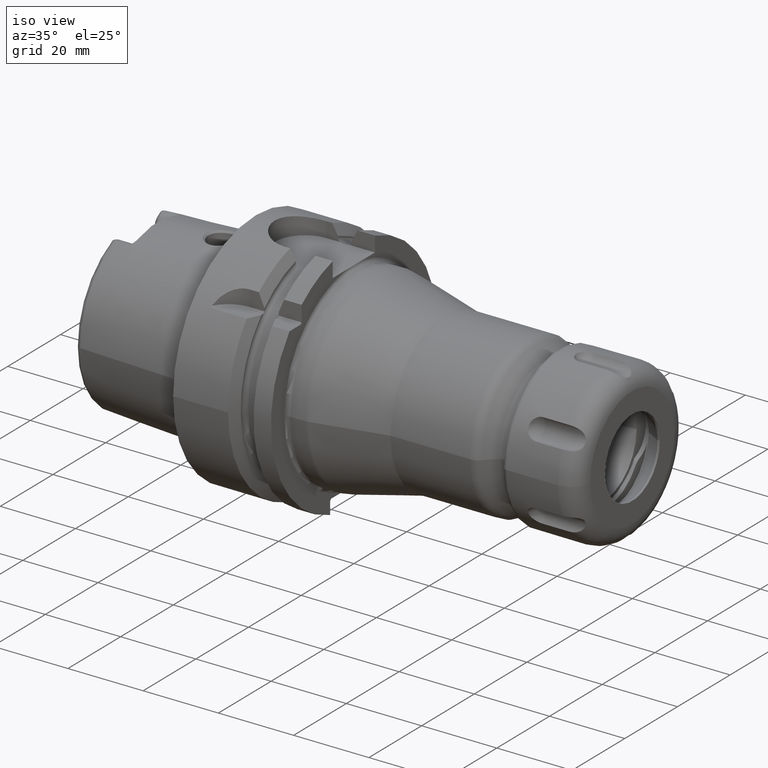
[diagram: clean part render]
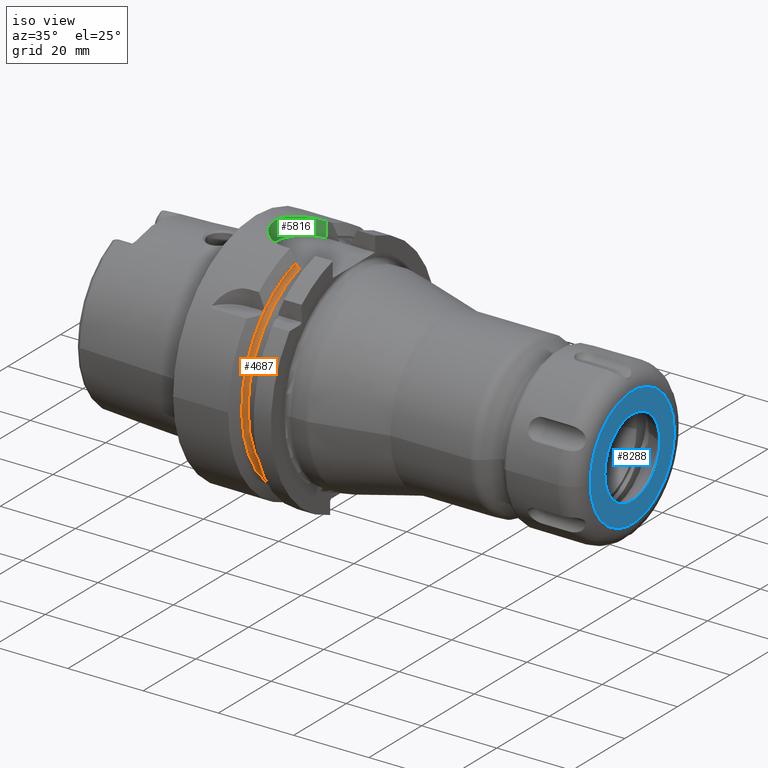
[diagram: same view with three faces highlighted in distinct colors, each labeled with its STEP entity id]
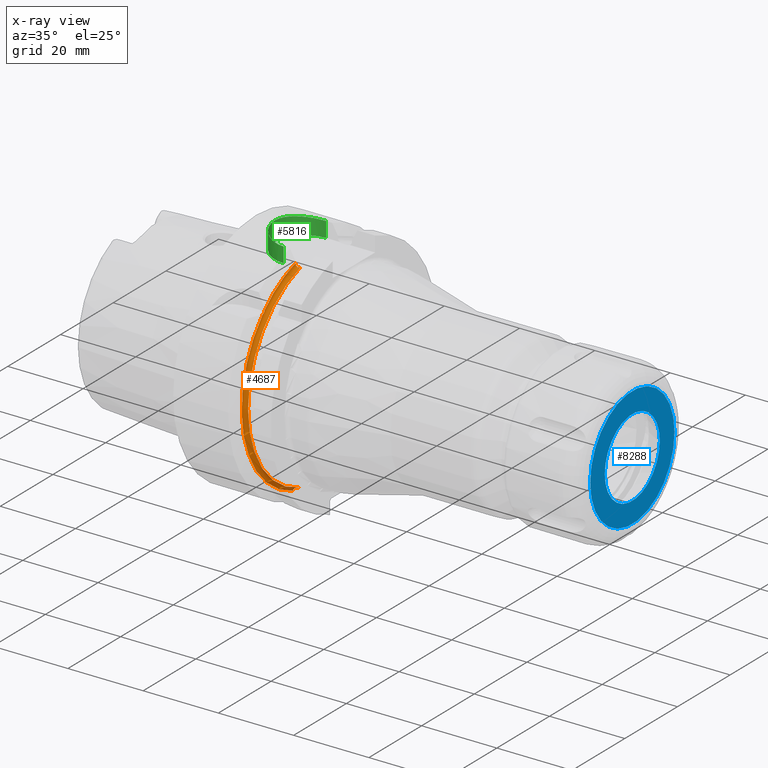
[diagram: x-ray of the same camera — body ghosted, the three highlighted faces saturated]
A machine part, iso view with three faces highlighted in distinct colors.
The next image is the same camera in x-ray (body ghosted, the three faces saturated) — at least one of them is partly hidden behind the body in this view.
Their STEP definitions:

[orange] entity #4687 — the highlighted toroidal blend (fillet) surface has major radius 28.5 mm and minor (blend) radius 1 mm.
#1206=CARTESIAN_POINT('',(1.613536526528E1,-1.985E1,2.025E1));
#1207=CARTESIAN_POINT('',(1.613550260110E1,-1.991709232524E1,2.018290767476E1));
#1208=CARTESIAN_POINT('',(1.613564025381E1,-2.005085131842E1,2.004914868158E1));
#1209=CARTESIAN_POINT('',(1.613550085848E1,-2.018375899049E1,1.991624100951E1));
#1210=CARTESIAN_POINT('',(1.613536526528E1,-2.025E1,1.985E1));
#1259=CARTESIAN_POINT('',(1.613536526528E1,-2.025E1,1.985E1));
#1260=CARTESIAN_POINT('',(1.613195006880E1,-2.028295639424E1,1.985E1));
#1261=CARTESIAN_POINT('',(1.612677449614E1,-2.034934342887E1,1.985E1));
#1262=CARTESIAN_POINT('',(1.6125E1,-2.041669538428E1,1.985E1));
#1263=CARTESIAN_POINT('',(1.6125E1,-2.045061123781E1,1.985E1));
#1265=CARTESIAN_POINT('',(1.6125E1,-1.985E1,2.045061123781E1));
#1266=CARTESIAN_POINT('',(1.6125E1,-1.985E1,2.041664671374E1));
#1267=CARTESIAN_POINT('',(1.612677957818E1,-1.985E1,2.034924596259E1));
#1268=CARTESIAN_POINT('',(1.613195508539E1,-1.985E1,2.028290798456E1));
#1269=CARTESIAN_POINT('',(1.613536526528E1,-1.985E1,2.025E1));
#1271=CARTESIAN_POINT('',(1.6125E1,0.E0,0.E0));
#1272=DIRECTION('',(-1.E0,0.E0,0.E0));
#1273=DIRECTION('',(0.E0,-6.964912280702E-1,7.175653065898E-1));
#1274=AXIS2_PLACEMENT_3D('',#1271,#1272,#1273);
#1276=CARTESIAN_POINT('',(1.670911310946E1,-8.0175E0,2.64E1));
#1277=CARTESIAN_POINT('',(1.665267827324E1,-8.0175E0,2.642697222064E1));
#1278=CARTESIAN_POINT('',(1.654577124256E1,-8.0175E0,2.649097879059E1));
#1279=CARTESIAN_POINT('',(1.639987833805E1,-8.0175E0,2.662132725065E1));
#1280=CARTESIAN_POINT('',(1.628095404298E1,-8.0175E0,2.677825869002E1));
#1281=CARTESIAN_POINT('',(1.619308374626E1,-8.0175E0,2.695355816935E1));
#1282=CARTESIAN_POINT('',(1.613735294040E1,-8.0175E0,2.714849666226E1));
#1283=CARTESIAN_POINT('',(1.6125E1,-8.0175E0,2.728116054633E1));
#1284=CARTESIAN_POINT('',(1.6125E1,-8.0175E0,2.734903460362E1));
#1286=CARTESIAN_POINT('',(1.7125E1,-7.7E0,2.64E1));
#1287=CARTESIAN_POINT('',(1.709801542874E1,-7.7E0,2.64E1));
#1288=CARTESIAN_POINT('',(1.704428225575E1,-7.707480820281E0,2.64E1));
#1289=CARTESIAN_POINT('',(1.696015728326E1,-7.744711750978E0,2.64E1));
#1290=CARTESIAN_POINT('',(1.688520085667E1,-7.800550899081E0,2.64E1));
#1291=CARTESIAN_POINT('',(1.681986238020E1,-7.866117342831E0,2.64E1));
#1292=CARTESIAN_POINT('',(1.676061128616E1,-7.939936204551E0,2.64E1));
#1293=CARTESIAN_POINT('',(1.672578491309E1,-7.991262830607E0,2.64E1));
#1294=CARTESIAN_POINT('',(1.670911310946E1,-8.0175E0,2.64E1));
#1296=CARTESIAN_POINT('',(1.644062313526E1,-8.6175E0,-2.64E1));
#1297=CARTESIAN_POINT('',(1.646078603879E1,-8.556510852770E0,-2.64E1));
#1298=CARTESIAN_POINT('',(1.650227386064E1,-8.439948273349E0,-2.64E1));
#1299=CARTESIAN_POINT('',(1.656805348335E1,-8.280864278287E0,-2.64E1));
#1300=CARTESIAN_POINT('',(1.663684500818E1,-8.138886080904E0,-2.64E1));
#1301=CARTESIAN_POINT('',(1.670898389576E1,-8.013810014671E0,-2.64E1));
#1302=CARTESIAN_POINT('',(1.678453793855E1,-7.906721865662E0,-2.64E1));
#1303=CARTESIAN_POINT('',(1.686362062870E1,-7.819127635624E0,-2.64E1));
#1304=CARTESIAN_POINT('',(1.694730615110E1,-7.751879650101E0,-2.64E1));
#1305=CARTESIAN_POINT('',(1.703817130297E1,-7.708637437381E0,-2.64E1));
#1306=CARTESIAN_POINT('',(1.709608612766E1,-7.7E0,-2.64E1));
#1307=CARTESIAN_POINT('',(1.7125E1,-7.7E0,-2.64E1));
#1309=CARTESIAN_POINT('',(1.6125E1,-9.0175E0,-2.703580392276E1));
#1310=CARTESIAN_POINT('',(1.6125E1,-9.0175E0,-2.699612992119E1));
#1311=CARTESIAN_POINT('',(1.612923563140E1,-9.0175E0,-2.691715797157E1));
#1312=CARTESIAN_POINT('',(1.614185450403E1,-9.0175E0,-2.683892189472E1));
#1313=CARTESIAN_POINT('',(1.615031694012E1,-9.0175E0,-2.68E1));
#1315=CARTESIAN_POINT('',(1.6125E1,0.E0,0.E0));
#1316=DIRECTION('',(-1.E0,0.E0,0.E0));
#1317=DIRECTION('',(0.E0,-3.164035087719E-1,-9.486246990443E-1));
#1318=AXIS2_PLACEMENT_3D('',#1315,#1316,#1317);
#2174=CARTESIAN_POINT('',(1.615031694012E1,-9.0175E0,-2.68E1));
#2175=CARTESIAN_POINT('',(1.616562111885E1,-8.964831842601E0,
-2.674733184260E1));
#2176=CARTESIAN_POINT('',(1.620853846437E1,-8.865085635001E0,
-2.664758563500E1));
#2177=CARTESIAN_POINT('',(1.630976642765E1,-8.727723429737E0,
-2.651022342974E1));
#2178=CARTESIAN_POINT('',(1.639403355348E1,-8.652180428545E0,
-2.643468042854E1));
#2179=CARTESIAN_POINT('',(1.644062313526E1,-8.6175E0,-2.64E1));
#2251=CARTESIAN_POINT('',(1.7125E1,0.E0,0.E0));
#2252=DIRECTION('',(-1.E0,0.E0,0.E0));
#2253=DIRECTION('',(0.E0,-2.8E-1,-9.6E-1));
#2254=AXIS2_PLACEMENT_3D('',#2251,#2252,#2253);
#3074=CARTESIAN_POINT('',(1.670911310946E1,-8.0175E0,2.64E1));
#3075=VERTEX_POINT('',#3074);
#3084=VERTEX_POINT('',#2174);
#3085=VERTEX_POINT('',#2179);
#3116=VERTEX_POINT('',#1206);
#3117=VERTEX_POINT('',#1210);
#3141=CARTESIAN_POINT('',(1.6125E1,-8.0175E0,2.734903460362E1));
#3143=VERTEX_POINT('',#3141);
#3149=VERTEX_POINT('',#1286);
#3171=CARTESIAN_POINT('',(1.6125E1,-9.0175E0,-2.703580392276E1));
#3173=VERTEX_POINT('',#3171);
#3174=CARTESIAN_POINT('',(1.7125E1,-7.7E0,-2.64E1));
#3176=VERTEX_POINT('',#3174);
#3207=CARTESIAN_POINT('',(1.6125E1,-2.045061123781E1,1.985E1));
#3209=VERTEX_POINT('',#3207);
#3211=CARTESIAN_POINT('',(1.6125E1,-1.985E1,2.045061123781E1));
#3213=VERTEX_POINT('',#3211);
#4659=CARTESIAN_POINT('',(1.7125E1,0.E0,0.E0));
#4660=DIRECTION('',(1.E0,0.E0,0.E0));
#4661=DIRECTION('',(0.E0,-1.E0,0.E0));
#4662=AXIS2_PLACEMENT_3D('',#4659,#4660,#4661);
#4663=TOROIDAL_SURFACE('',#4662,2.85E1,1.E0);
#4665=ORIENTED_EDGE('',*,*,#4664,.F.);
#4666=ORIENTED_EDGE('',*,*,#4627,.F.);
#4668=ORIENTED_EDGE('',*,*,#4667,.F.);
#4670=ORIENTED_EDGE('',*,*,#4669,.T.);
#4672=ORIENTED_EDGE('',*,*,#4671,.F.);
#4674=ORIENTED_EDGE('',*,*,#4673,.F.);
#4676=ORIENTED_EDGE('',*,*,#4675,.F.);
#4678=ORIENTED_EDGE('',*,*,#4677,.F.);
#4680=ORIENTED_EDGE('',*,*,#4679,.F.);
#4682=ORIENTED_EDGE('',*,*,#4681,.F.);
#4684=ORIENTED_EDGE('',*,*,#4683,.T.);
#4685=EDGE_LOOP('',(#4665,#4666,#4668,#4670,#4672,#4674,#4676,#4678,#4680,#4682,
#4684));
#4686=FACE_OUTER_BOUND('',#4685,.F.);
#4687=ADVANCED_FACE('',(#4686),#4663,.F.);
#1211=B_SPLINE_CURVE_WITH_KNOTS('',3,(#1206,#1207,#1208,#1209,#1210),
.UNSPECIFIED.,.F.,.F.,(4,1,4),(0.E0,5.E-1,1.E0),.UNSPECIFIED.);
#1264=B_SPLINE_CURVE_WITH_KNOTS('',3,(#1259,#1260,#1261,#1262,#1263),
.UNSPECIFIED.,.F.,.F.,(4,1,4),(0.E0,5.E-1,1.E0),.UNSPECIFIED.);
#1270=B_SPLINE_CURVE_WITH_KNOTS('',3,(#1265,#1266,#1267,#1268,#1269),
.UNSPECIFIED.,.F.,.F.,(4,1,4),(0.E0,5.E-1,1.E0),.UNSPECIFIED.);
#1275=CIRCLE('',#1274,2.85E1);
#1285=B_SPLINE_CURVE_WITH_KNOTS('',3,(#1276,#1277,#1278,#1279,#1280,#1281,#1282,
#1283,#1284),.UNSPECIFIED.,.F.,.F.,(4,1,1,1,1,1,4),(0.E0,1.666666666667E-1,
3.333333333333E-1,5.E-1,6.666666666667E-1,8.333333333333E-1,1.E0),
.UNSPECIFIED.);
#1295=B_SPLINE_CURVE_WITH_KNOTS('',3,(#1286,#1287,#1288,#1289,#1290,#1291,#1292,
#1293,#1294),.UNSPECIFIED.,.F.,.F.,(4,1,1,1,1,1,4),(0.E0,1.666666666667E-1,
3.333333333333E-1,5.E-1,6.666666666667E-1,8.333333333333E-1,1.E0),
.UNSPECIFIED.);
#1308=B_SPLINE_CURVE_WITH_KNOTS('',3,(#1296,#1297,#1298,#1299,#1300,#1301,#1302,
#1303,#1304,#1305,#1306,#1307),.UNSPECIFIED.,.F.,.F.,(4,1,1,1,1,1,1,1,1,4),
(0.E0,1.111111111111E-1,2.222222222222E-1,3.333333333333E-1,4.444444444444E-1,
5.555555555556E-1,6.666666666667E-1,7.777777777778E-1,8.888888888889E-1,1.E0),
.UNSPECIFIED.);
#1314=B_SPLINE_CURVE_WITH_KNOTS('',3,(#1309,#1310,#1311,#1312,#1313),
.UNSPECIFIED.,.F.,.F.,(4,1,4),(0.E0,5.E-1,1.E0),.UNSPECIFIED.);
#1319=CIRCLE('',#1318,2.85E1);
#2180=B_SPLINE_CURVE_WITH_KNOTS('',3,(#2174,#2175,#2176,#2177,#2178,#2179),
.UNSPECIFIED.,.F.,.F.,(4,1,1,4),(0.E0,3.333333333333E-1,6.666666666667E-1,1.E0),
.UNSPECIFIED.);
#2255=CIRCLE('',#2254,2.75E1);
#4627=EDGE_CURVE('',#3116,#3117,#1211,.T.);
#4664=EDGE_CURVE('',#3117,#3209,#1264,.T.);
#4667=EDGE_CURVE('',#3213,#3116,#1270,.T.);
#4669=EDGE_CURVE('',#3213,#3143,#1275,.T.);
#4671=EDGE_CURVE('',#3075,#3143,#1285,.T.);
#4673=EDGE_CURVE('',#3149,#3075,#1295,.T.);
#4675=EDGE_CURVE('',#3176,#3149,#2255,.T.);
#4677=EDGE_CURVE('',#3085,#3176,#1308,.T.);
#4679=EDGE_CURVE('',#3084,#3085,#2180,.T.);
#4681=EDGE_CURVE('',#3173,#3084,#1314,.T.);
#4683=EDGE_CURVE('',#3173,#3209,#1319,.T.);

[blue] entity #8288 — the highlighted planar face has unit normal (-1, 0, 0).
#6929=CARTESIAN_POINT('',(2.E1,0.E0,0.E0));
#6930=DIRECTION('',(1.E0,0.E0,0.E0));
#6931=DIRECTION('',(0.E0,1.E0,0.E0));
#6932=AXIS2_PLACEMENT_3D('',#6929,#6930,#6931);
#7027=CARTESIAN_POINT('',(2.E1,0.E0,0.E0));
#7028=DIRECTION('',(-1.E0,0.E0,0.E0));
#7029=DIRECTION('',(0.E0,1.E0,0.E0));
#7030=AXIS2_PLACEMENT_3D('',#7027,#7028,#7029);
#7208=CARTESIAN_POINT('',(2.E1,0.E0,0.E0));
#7209=DIRECTION('',(-1.E0,0.E0,0.E0));
#7210=DIRECTION('',(0.E0,1.E0,0.E0));
#7211=AXIS2_PLACEMENT_3D('',#7208,#7209,#7210);
#7213=CARTESIAN_POINT('',(2.E1,0.E0,0.E0));
#7214=DIRECTION('',(-1.E0,0.E0,0.E0));
#7215=DIRECTION('',(0.E0,-1.E0,0.E0));
#7216=AXIS2_PLACEMENT_3D('',#7213,#7214,#7215);
#7823=CARTESIAN_POINT('',(2.E1,1.6E1,0.E0));
#7825=VERTEX_POINT('',#7823);
#7831=CARTESIAN_POINT('',(2.E1,-1.6E1,0.E0));
#7833=VERTEX_POINT('',#7831);
#7965=CARTESIAN_POINT('',(2.E1,1.045E1,0.E0));
#7966=CARTESIAN_POINT('',(2.E1,-1.045E1,0.E0));
#7967=VERTEX_POINT('',#7965);
#7968=VERTEX_POINT('',#7966);
#8273=CARTESIAN_POINT('',(2.E1,0.E0,0.E0));
#8274=DIRECTION('',(-1.E0,0.E0,0.E0));
#8275=DIRECTION('',(0.E0,1.E0,0.E0));
#8276=AXIS2_PLACEMENT_3D('',#8273,#8274,#8275);
#8277=PLANE('',#8276);
#8278=ORIENTED_EDGE('',*,*,#8091,.F.);
#8279=ORIENTED_EDGE('',*,*,#8155,.T.);
#8280=EDGE_LOOP('',(#8278,#8279));
#8281=FACE_OUTER_BOUND('',#8280,.F.);
#8283=ORIENTED_EDGE('',*,*,#8282,.F.);
#8285=ORIENTED_EDGE('',*,*,#8284,.F.);
#8286=EDGE_LOOP('',(#8283,#8285));
#8287=FACE_BOUND('',#8286,.F.);
#8288=ADVANCED_FACE('',(#8281,#8287),#8277,.F.);
#6933=CIRCLE('',#6932,1.6E1);
#7031=CIRCLE('',#7030,1.6E1);
#7212=CIRCLE('',#7211,1.045E1);
#7217=CIRCLE('',#7216,1.045E1);
#8091=EDGE_CURVE('',#7825,#7833,#6933,.T.);
#8155=EDGE_CURVE('',#7825,#7833,#7031,.T.);
#8282=EDGE_CURVE('',#7967,#7968,#7212,.T.);
#8284=EDGE_CURVE('',#7968,#7967,#7217,.T.);

[green] entity #5816 — the highlighted cylindrical surface (partial cylindrical patch) has radius 8.0175 mm, axis along (0, 0, 1).
#1150=CARTESIAN_POINT('',(1.29675E1,-8.0175E0,3.046259499370E1));
#1151=CARTESIAN_POINT('',(1.262029466193E1,-8.0175E0,3.046259499370E1));
#1152=CARTESIAN_POINT('',(1.193292082029E1,-7.972856309682E0,3.047439785027E1));
#1153=CARTESIAN_POINT('',(1.091425902188E1,-7.773176787902E0,3.052624418591E1));
#1154=CARTESIAN_POINT('',(9.934126849983E0,-7.445404290975E0,3.060831570964E1));
#1155=CARTESIAN_POINT('',(9.004286205686E0,-6.994846174415E0,3.071501370342E1));
#1156=CARTESIAN_POINT('',(8.138619971222E0,-6.428343040649E0,3.083929437245E1));
#1157=CARTESIAN_POINT('',(7.341033244269E0,-5.744094981007E0,3.097488281900E1));
#1158=CARTESIAN_POINT('',(6.636610015904E0,-4.956823973346E0,3.111134005505E1));
#1159=CARTESIAN_POINT('',(6.043298615168E0,-4.087231355503E0,3.123817795333E1));
#1160=CARTESIAN_POINT('',(5.564354260648E0,-3.139626798488E0,3.134839057540E1));
#1161=CARTESIAN_POINT('',(5.208675508384E0,-2.115659667041E0,3.143476377212E1));
#1162=CARTESIAN_POINT('',(4.995564432998E0,-1.053473182399E0,3.148835416009E1));
#1163=CARTESIAN_POINT('',(4.927168873806E0,9.826508337445E-4,3.150583538732E1));
#1164=CARTESIAN_POINT('',(4.995760366771E0,1.054869977933E0,3.148830421554E1));
#1165=CARTESIAN_POINT('',(5.209100296272E0,2.117206961075E0,3.143465845843E1));
#1166=CARTESIAN_POINT('',(5.564768023101E0,3.140504656583E0,3.134829355759E1));
#1167=CARTESIAN_POINT('',(6.043465163200E0,4.087475455639E0,3.123814225608E1));
#1168=CARTESIAN_POINT('',(6.636650004810E0,4.956867733051E0,3.111133228169E1));
#1169=CARTESIAN_POINT('',(7.340978157719E0,5.744022439956E0,3.097489453754E1));
#1170=CARTESIAN_POINT('',(8.138191392118E0,6.427992830706E0,3.083936557780E1));
#1171=CARTESIAN_POINT('',(9.003473595842E0,6.994378480458E0,3.071512050332E1));
#1172=CARTESIAN_POINT('',(9.933336680083E0,7.445092599368E0,3.060839241432E1));
#1173=CARTESIAN_POINT('',(1.091365443769E1,7.773025904739E0,3.052628299010E1));
#1174=CARTESIAN_POINT('',(1.193250504209E1,7.972814414214E0,3.047440893684E1));
#1175=CARTESIAN_POINT('',(1.262014082393E1,8.0175E0,3.046259499370E1));
#1176=CARTESIAN_POINT('',(1.29675E1,8.0175E0,3.046259499370E1));
#1803=CARTESIAN_POINT('',(1.29675E1,0.E0,2.64E1));
#1804=DIRECTION('',(0.E0,0.E0,1.E0));
#1805=DIRECTION('',(0.E0,1.E0,0.E0));
#1806=AXIS2_PLACEMENT_3D('',#1803,#1804,#1805);
#1812=DIRECTION('',(0.E0,0.E0,1.E0));
#1813=VECTOR('',#1812,4.062594993697E0);
#1814=CARTESIAN_POINT('',(1.29675E1,-8.0175E0,2.64E1));
#1815=LINE('',#1814,#1813);
#2243=DIRECTION('',(0.E0,0.E0,1.E0));
#2244=VECTOR('',#2243,4.062594993697E0);
#2245=CARTESIAN_POINT('',(1.29675E1,8.0175E0,2.64E1));
#2246=LINE('',#2245,#2244);
#3070=CARTESIAN_POINT('',(1.29675E1,8.0175E0,2.64E1));
#3071=CARTESIAN_POINT('',(1.29675E1,-8.0175E0,2.64E1));
#3072=VERTEX_POINT('',#3070);
#3073=VERTEX_POINT('',#3071);
#3076=CARTESIAN_POINT('',(1.29675E1,8.0175E0,3.046259499370E1));
#3077=VERTEX_POINT('',#3076);
#3078=CARTESIAN_POINT('',(1.29675E1,-8.0175E0,3.046259499370E1));
#3079=VERTEX_POINT('',#3078);
#5805=CARTESIAN_POINT('',(1.29675E1,0.E0,2.64E1));
#5806=DIRECTION('',(0.E0,0.E0,1.E0));
#5807=DIRECTION('',(1.E0,0.E0,0.E0));
#5808=AXIS2_PLACEMENT_3D('',#5805,#5806,#5807);
#5809=CYLINDRICAL_SURFACE('',#5808,8.0175E0);
#5810=ORIENTED_EDGE('',*,*,#5373,.F.);
#5811=ORIENTED_EDGE('',*,*,#5261,.T.);
#5812=ORIENTED_EDGE('',*,*,#5286,.T.);
#5813=ORIENTED_EDGE('',*,*,#4584,.T.);
#5814=EDGE_LOOP('',(#5810,#5811,#5812,#5813));
#5815=FACE_OUTER_BOUND('',#5814,.F.);
#5816=ADVANCED_FACE('',(#5815),#5809,.F.);
#1177=B_SPLINE_CURVE_WITH_KNOTS('',3,(#1150,#1151,#1152,#1153,#1154,#1155,#1156,
#1157,#1158,#1159,#1160,#1161,#1162,#1163,#1164,#1165,#1166,#1167,#1168,#1169,
#1170,#1171,#1172,#1173,#1174,#1175,#1176),.UNSPECIFIED.,.F.,.F.,(4,1,1,1,1,1,1,
1,1,1,1,1,1,1,1,1,1,1,1,1,1,1,1,1,4),(0.E0,4.166666666667E-2,8.333333333333E-2,
1.25E-1,1.666666666667E-1,2.083333333333E-1,2.5E-1,2.916666666667E-1,
3.333333333333E-1,3.75E-1,4.166666666667E-1,4.583333333333E-1,5.E-1,
5.416666666667E-1,5.833333333333E-1,6.25E-1,6.666666666667E-1,7.083333333333E-1,
7.5E-1,7.916666666667E-1,8.333333333333E-1,8.75E-1,9.166666666667E-1,
9.583333333333E-1,1.E0),.UNSPECIFIED.);
#1807=CIRCLE('',#1806,8.0175E0);
#4584=EDGE_CURVE('',#3079,#3077,#1177,.T.);
#5261=EDGE_CURVE('',#3072,#3073,#1807,.T.);
#5286=EDGE_CURVE('',#3073,#3079,#1815,.T.);
#5373=EDGE_CURVE('',#3072,#3077,#2246,.T.);